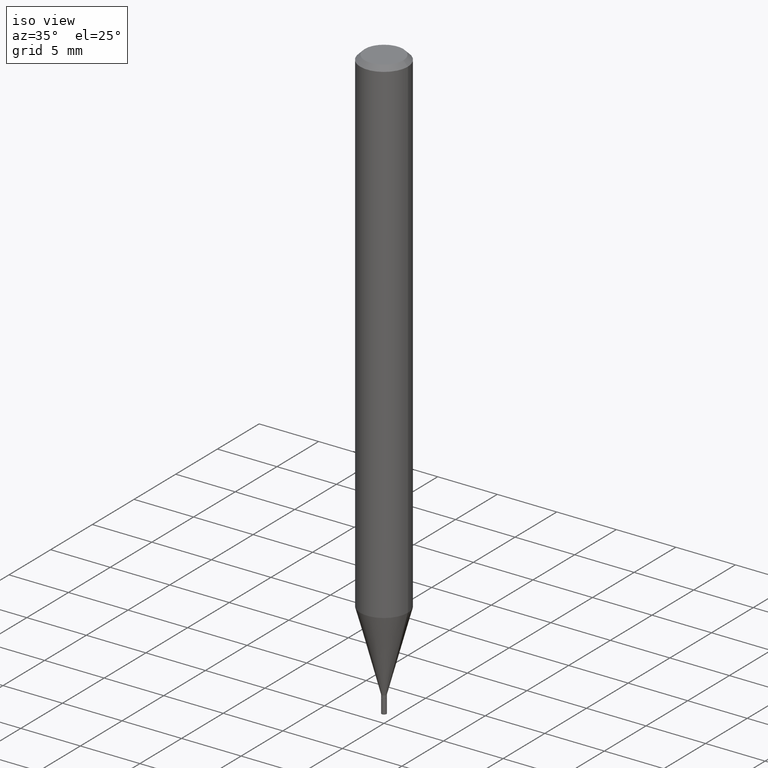
[diagram: clean part render]
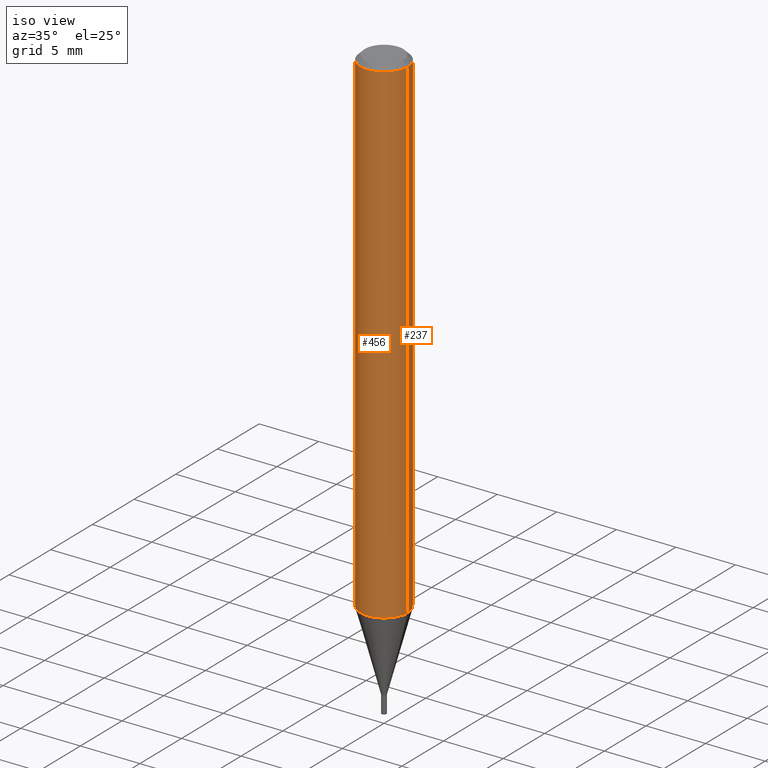
[diagram: same view with one multi-face feature highlighted, each face labeled with its STEP entity id]
A machine part, iso view. The highlighted faces form ONE feature: a constant-radius fillet chain: 2 tangent blend faces with common blend radius 2.0002 mm. The faces share edges in the B-rep.
Their STEP definitions:
[1] entity #237 (Cylinder):
#3 = VECTOR ( 'NONE', #258, 39.37007874015748143 ) ;
#32 = DIRECTION ( 'NONE',  ( 1.000000000000000000, -6.982962677686261977E-15, 0.000000000000000000 ) ) ;
#40 = CARTESIAN_POINT ( 'NONE',  ( 0.07875000000000000056, -6.300020540374364263E-15, -1.646897597743366859 ) ) ;
#50 = ORIENTED_EDGE ( 'NONE', *, *, #171, .F. ) ;
#82 = DIRECTION ( 'NONE',  ( 1.000000000000000000, -6.982962677686265922E-15, 0.000000000000000000 ) ) ;
#94 = FACE_OUTER_BOUND ( 'NONE', #227, .T. ) ;
#98 = VERTEX_POINT ( 'NONE', #404 ) ;
#128 = VERTEX_POINT ( 'NONE', #365 ) ;
#149 = VECTOR ( 'NONE', #293, 39.37007874015748143 ) ;
#153 = VERTEX_POINT ( 'NONE', #373 ) ;
#154 = DIRECTION ( 'NONE',  ( 1.000000000000000000, -6.982962677686265922E-15, 4.876176775795935232E-29 ) ) ;
#159 = AXIS2_PLACEMENT_3D ( 'NONE', #233, #282, #32 ) ;
#162 = CARTESIAN_POINT ( 'NONE',  ( 0.000000000000000000, 0.000000000000000000, 0.000000000000000000 ) ) ;
#168 = EDGE_CURVE ( 'NONE', #443, #98, #186, .T. ) ;
#171 = EDGE_CURVE ( 'NONE', #98, #153, #463, .T. ) ;
#186 = LINE ( 'NONE', #189, #3 ) ;
#189 = CARTESIAN_POINT ( 'NONE',  ( 0.07875000000000000056, -5.499083108677934443E-16, 3.839989210939299016E-30 ) ) ;
#219 = ORIENTED_EDGE ( 'NONE', *, *, #280, .T. ) ;
#227 = EDGE_LOOP ( 'NONE', ( #219, #384, #50, #303 ) ) ;
#233 = CARTESIAN_POINT ( 'NONE',  ( 4.027436702262640523E-29, -5.750112229506570917E-15, -1.646897597743366859 ) ) ;
#237 = ADVANCED_FACE ( 'NONE', ( #94 ), #378, .T. ) ;
#239 = CARTESIAN_POINT ( 'NONE',  ( -0.07875000000000000056, 5.595524044110789003E-16, -3.873661383575737792E-30 ) ) ;
#248 = AXIS2_PLACEMENT_3D ( 'NONE', #337, #298, #82 ) ;
#258 = DIRECTION ( 'NONE',  ( -2.445468806185136877E-29, 3.491481338843145188E-15, 1.000000000000000000 ) ) ;
#264 = AXIS2_PLACEMENT_3D ( 'NONE', #162, #420, #154 ) ;
#280 = EDGE_CURVE ( 'NONE', #443, #128, #393, .T. ) ;
#282 = DIRECTION ( 'NONE',  ( -2.445468806185136597E-29, 3.491481338843145583E-15, 1.000000000000000000 ) ) ;
#293 = DIRECTION ( 'NONE',  ( -2.445468806185136877E-29, 3.491481338843145188E-15, 1.000000000000000000 ) ) ;
#298 = DIRECTION ( 'NONE',  ( -2.445468806185136597E-29, 3.491481338843145583E-15, 1.000000000000000000 ) ) ;
#303 = ORIENTED_EDGE ( 'NONE', *, *, #168, .F. ) ;
#332 = EDGE_CURVE ( 'NONE', #128, #153, #345, .T. ) ;
#337 = CARTESIAN_POINT ( 'NONE',  ( 3.668203209277705088E-31, -5.237222008264718399E-17, -0.01499999999999999944 ) ) ;
#345 = LINE ( 'NONE', #239, #149 ) ;
#365 = CARTESIAN_POINT ( 'NONE',  ( -0.07875000000000000056, -5.190559825095492905E-15, -1.646897597743366859 ) ) ;
#373 = CARTESIAN_POINT ( 'NONE',  ( -0.07875000000000000056, -2.341689820383530788E-15, -0.01499999999999999944 ) ) ;
#378 = CYLINDRICAL_SURFACE ( 'NONE', #264, 0.07875000000000000056 ) ;
#384 = ORIENTED_EDGE ( 'NONE', *, *, #332, .T. ) ;
#393 = CIRCLE ( 'NONE', #159, 0.07875000000000000056 ) ;
#404 = CARTESIAN_POINT ( 'NONE',  ( 0.07875000000000000056, -6.022805309504406221E-16, -0.01499999999999999944 ) ) ;
#420 = DIRECTION ( 'NONE',  ( -2.445468806185136597E-29, 3.491481338843145583E-15, 1.000000000000000000 ) ) ;
#443 = VERTEX_POINT ( 'NONE', #40 ) ;
#463 = CIRCLE ( 'NONE', #248, 0.07875000000000000056 ) ;
[2] entity #456 (Cylinder):
#3 = VECTOR ( 'NONE', #258, 39.37007874015748143 ) ;
#5 = DIRECTION ( 'NONE',  ( 1.000000000000000000, -6.982962677686261977E-15, 0.000000000000000000 ) ) ;
#25 = AXIS2_PLACEMENT_3D ( 'NONE', #46, #308, #331 ) ;
#40 = CARTESIAN_POINT ( 'NONE',  ( 0.07875000000000000056, -6.300020540374364263E-15, -1.646897597743366859 ) ) ;
#46 = CARTESIAN_POINT ( 'NONE',  ( 3.668203209277705088E-31, -5.237222008264718399E-17, -0.01499999999999999944 ) ) ;
#64 = ORIENTED_EDGE ( 'NONE', *, *, #87, .T. ) ;
#87 = EDGE_CURVE ( 'NONE', #128, #443, #428, .T. ) ;
#98 = VERTEX_POINT ( 'NONE', #404 ) ;
#106 = CIRCLE ( 'NONE', #25, 0.07875000000000000056 ) ;
#128 = VERTEX_POINT ( 'NONE', #365 ) ;
#135 = CYLINDRICAL_SURFACE ( 'NONE', #429, 0.07875000000000000056 ) ;
#149 = VECTOR ( 'NONE', #293, 39.37007874015748143 ) ;
#153 = VERTEX_POINT ( 'NONE', #373 ) ;
#168 = EDGE_CURVE ( 'NONE', #443, #98, #186, .T. ) ;
#173 = ORIENTED_EDGE ( 'NONE', *, *, #184, .F. ) ;
#179 = DIRECTION ( 'NONE',  ( -2.445468806185136597E-29, 3.491481338843145583E-15, 1.000000000000000000 ) ) ;
#184 = EDGE_CURVE ( 'NONE', #153, #98, #106, .T. ) ;
#186 = LINE ( 'NONE', #189, #3 ) ;
#189 = CARTESIAN_POINT ( 'NONE',  ( 0.07875000000000000056, -5.499083108677934443E-16, 3.839989210939299016E-30 ) ) ;
#239 = CARTESIAN_POINT ( 'NONE',  ( -0.07875000000000000056, 5.595524044110789003E-16, -3.873661383575737792E-30 ) ) ;
#246 = FACE_OUTER_BOUND ( 'NONE', #427, .T. ) ;
#250 = CARTESIAN_POINT ( 'NONE',  ( 4.027436702262640523E-29, -5.750112229506570917E-15, -1.646897597743366859 ) ) ;
#258 = DIRECTION ( 'NONE',  ( -2.445468806185136877E-29, 3.491481338843145188E-15, 1.000000000000000000 ) ) ;
#281 = DIRECTION ( 'NONE',  ( 1.000000000000000000, -6.982962677686265922E-15, 4.876176775795935232E-29 ) ) ;
#293 = DIRECTION ( 'NONE',  ( -2.445468806185136877E-29, 3.491481338843145188E-15, 1.000000000000000000 ) ) ;
#308 = DIRECTION ( 'NONE',  ( -2.445468806185136597E-29, 3.491481338843145583E-15, 1.000000000000000000 ) ) ;
#316 = ORIENTED_EDGE ( 'NONE', *, *, #168, .T. ) ;
#328 = AXIS2_PLACEMENT_3D ( 'NONE', #250, #361, #5 ) ;
#331 = DIRECTION ( 'NONE',  ( 1.000000000000000000, -6.982962677686265922E-15, 0.000000000000000000 ) ) ;
#332 = EDGE_CURVE ( 'NONE', #128, #153, #345, .T. ) ;
#345 = LINE ( 'NONE', #239, #149 ) ;
#348 = ORIENTED_EDGE ( 'NONE', *, *, #332, .F. ) ;
#361 = DIRECTION ( 'NONE',  ( -2.445468806185136597E-29, 3.491481338843145583E-15, 1.000000000000000000 ) ) ;
#365 = CARTESIAN_POINT ( 'NONE',  ( -0.07875000000000000056, -5.190559825095492905E-15, -1.646897597743366859 ) ) ;
#373 = CARTESIAN_POINT ( 'NONE',  ( -0.07875000000000000056, -2.341689820383530788E-15, -0.01499999999999999944 ) ) ;
#396 = CARTESIAN_POINT ( 'NONE',  ( 0.000000000000000000, 0.000000000000000000, 0.000000000000000000 ) ) ;
#404 = CARTESIAN_POINT ( 'NONE',  ( 0.07875000000000000056, -6.022805309504406221E-16, -0.01499999999999999944 ) ) ;
#427 = EDGE_LOOP ( 'NONE', ( #348, #64, #316, #173 ) ) ;
#428 = CIRCLE ( 'NONE', #328, 0.07875000000000000056 ) ;
#429 = AXIS2_PLACEMENT_3D ( 'NONE', #396, #179, #281 ) ;
#443 = VERTEX_POINT ( 'NONE', #40 ) ;
#456 = ADVANCED_FACE ( 'NONE', ( #246 ), #135, .T. ) ;